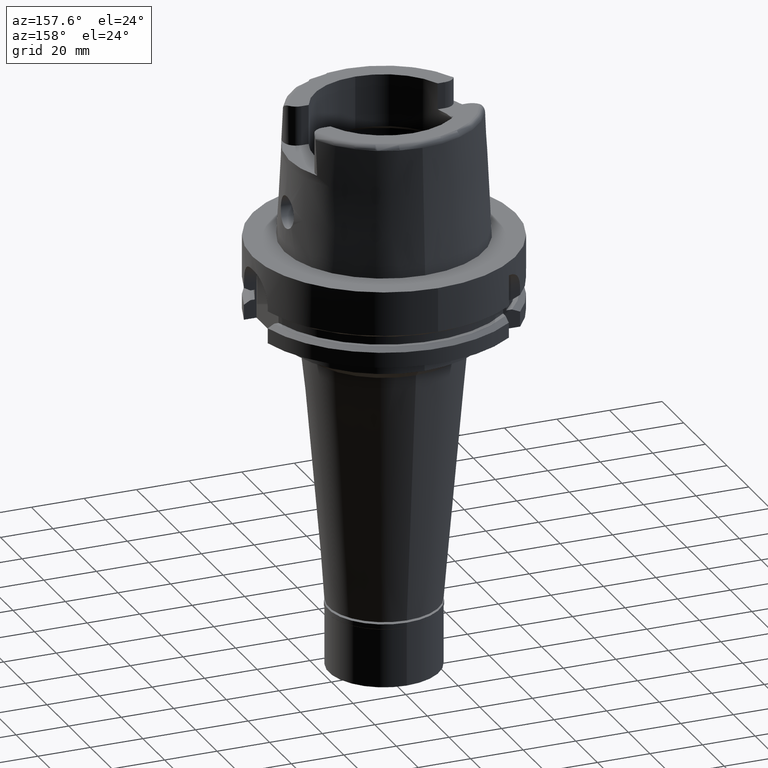
[diagram: clean part render]
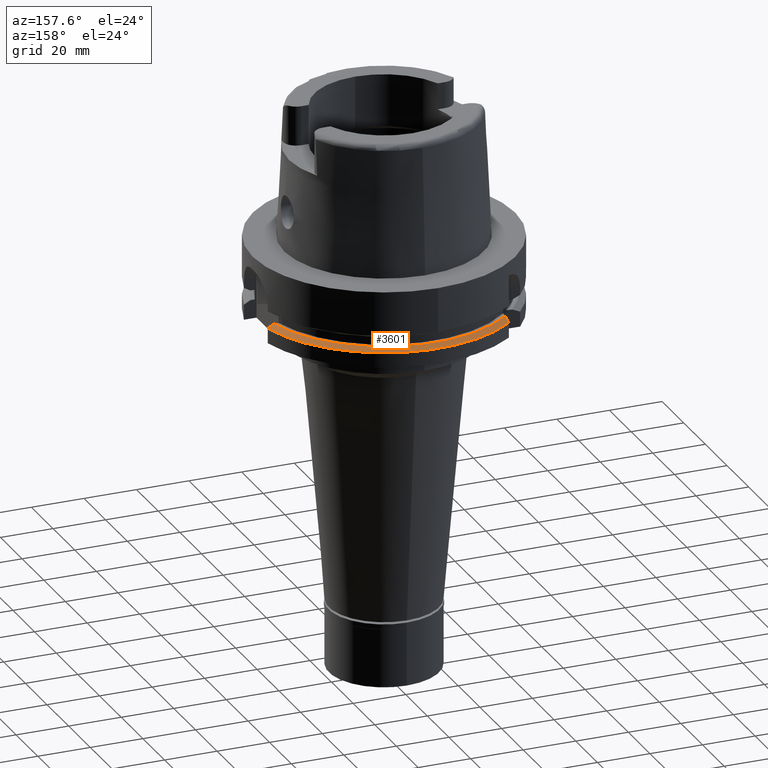
[diagram: same view with one face highlighted and labeled with its STEP entity id]
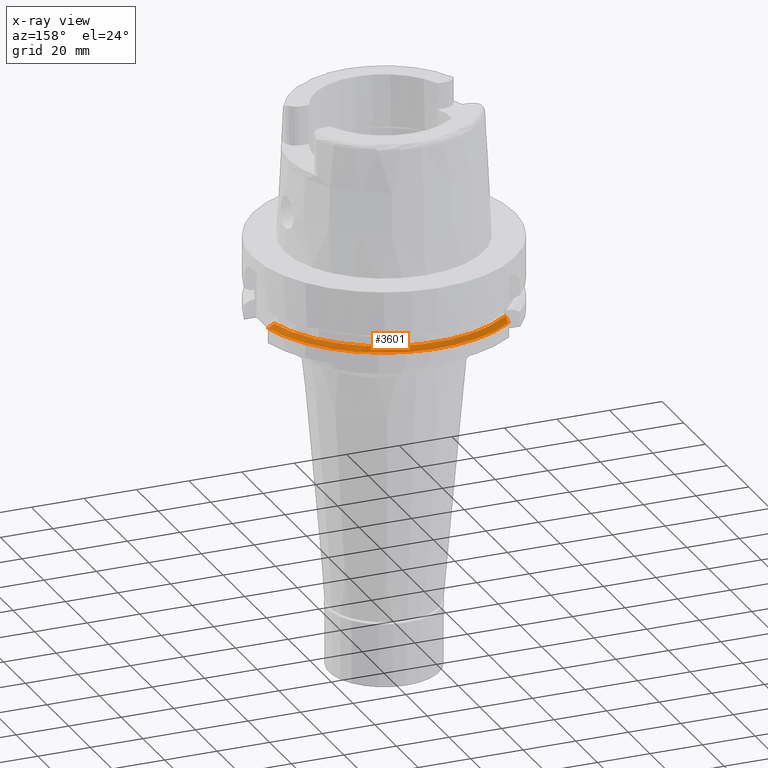
[diagram: x-ray of the same camera — body ghosted, the highlighted face saturated]
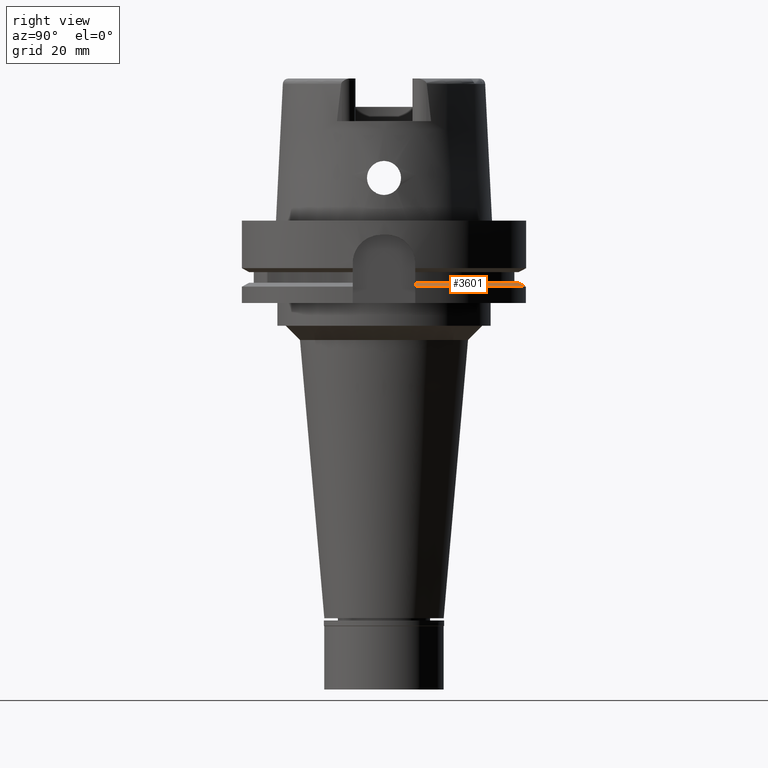
[diagram: same view with one face highlighted and labeled with its STEP entity id]
A machine part, auxiliary view. The second image highlights one B-rep face of the part: STEP entity #3601.
The next image is the same camera in x-ray: the body ghosted, the highlighted face saturated — about 0% of this face is hidden behind the body in this view.
A second angle (right view) of the same face is appended — the face is thin or edge-on in the first view.
In plain terms, the highlighted conical surface has half-angle 60 deg.
Its self-contained STEP definition (entity closure, byte-faithful):
#150 = CARTESIAN_POINT ( 'NONE',  ( -31.50000355985999789, 38.82975374283000036, -23.24760820811999906 ) ) ;
#303 = CARTESIAN_POINT ( 'NONE',  ( 47.14851446809999658, 11.00000000000000000, -22.33225649733000040 ) ) ;
#304 = DIRECTION ( 'NONE',  ( 0.0000000000000000000, 0.0000000000000000000, -1.000000000000000000 ) ) ;
#416 = CARTESIAN_POINT ( 'NONE',  ( 48.50399904748000068, 11.00000000000000000, -23.09496975037999889 ) ) ;
#758 = CARTESIAN_POINT ( 'NONE',  ( 47.96191616323000062, 11.00000000000000000, -22.78979543230000004 ) ) ;
#845 = ORIENTED_EDGE ( 'NONE', *, *, #4723, .T. ) ;
#891 = CARTESIAN_POINT ( 'NONE',  ( 46.33477721644000269, 11.00000000000000000, -21.87500000000000000 ) ) ;
#1059 = DIRECTION ( 'NONE',  ( 0.0000000000000000000, 0.0000000000000000000, -1.000000000000000000 ) ) ;
#1064 = CARTESIAN_POINT ( 'NONE',  ( -31.50000355985999789, 38.82975374283000036, -23.24760820811999906 ) ) ;
#1219 = DIRECTION ( 'NONE',  ( 0.0000000000000000000, 1.000000000000000000, 0.0000000000000000000 ) ) ;
#1358 = B_SPLINE_CURVE_WITH_KNOTS ( 'NONE', 3,
 ( #4617, #4929, #5415, #1064 ),
 .UNSPECIFIED., .F., .F.,
 ( 4, 4 ),
 ( 0.0000000000000000000, 1.000000000000000000 ),
 .UNSPECIFIED. ) ;
#1466 = EDGE_CURVE ( 'NONE', #4477, #1912, #1358, .T. ) ;
#1532 = B_SPLINE_CURVE_WITH_KNOTS ( 'NONE', 3,
 ( #5050, #416, #758, #303, #2026, #2138 ),
 .UNSPECIFIED., .F., .F.,
 ( 4, 1, 1, 4 ),
 ( 0.0000000000000000000, 0.3333333333333000081, 0.6666666666667000474, 1.000000000000000000 ),
 .UNSPECIFIED. ) ;
#1603 = CARTESIAN_POINT ( 'NONE',  ( 0.0000000000000000000, 0.0000000000000000000, -22.56129763209999695 ) ) ;
#1608 = EDGE_LOOP ( 'NONE', ( #2929, #845, #5070, #2727 ) ) ;
#1912 = VERTEX_POINT ( 'NONE', #150 ) ;
#2026 = CARTESIAN_POINT ( 'NONE',  ( 46.60605711264999940, 11.00000000000000000, -22.02738808210999721 ) ) ;
#2138 = CARTESIAN_POINT ( 'NONE',  ( 46.33477721644000269, 11.00000000000000000, -21.87500000000000000 ) ) ;
#2341 = AXIS2_PLACEMENT_3D ( 'NONE', #1603, #304, #2585 ) ;
#2453 = CARTESIAN_POINT ( 'NONE',  ( 0.0000000000000000000, 0.0000000000000000000, -21.87500000000000000 ) ) ;
#2523 = AXIS2_PLACEMENT_3D ( 'NONE', #2453, #3365, #1219 ) ;
#2585 = DIRECTION ( 'NONE',  ( 0.0000000000000000000, -1.000000000000000000, 0.0000000000000000000 ) ) ;
#2727 = ORIENTED_EDGE ( 'NONE', *, *, #4004, .F. ) ;
#2929 = ORIENTED_EDGE ( 'NONE', *, *, #1466, .F. ) ;
#3163 = CARTESIAN_POINT ( 'NONE',  ( 48.77499359303000404, 11.00000000000000000, -23.24759526419000011 ) ) ;
#3365 = DIRECTION ( 'NONE',  ( 0.0000000000000000000, 0.0000000000000000000, -1.000000000000000000 ) ) ;
#3499 = VERTEX_POINT ( 'NONE', #3163 ) ;
#3513 = CIRCLE ( 'NONE', #2523, 47.62259526418999656 ) ;
#3592 = AXIS2_PLACEMENT_3D ( 'NONE', #3629, #1059, #4899 ) ;
#3601 = ADVANCED_FACE ( 'NONE', ( #3723 ), #5034, .T. ) ;
#3629 = CARTESIAN_POINT ( 'NONE',  ( 0.0000000000000000000, 0.0000000000000000000, -23.24759526419000011 ) ) ;
#3723 = FACE_OUTER_BOUND ( 'NONE', #1608, .T. ) ;
#3866 = CIRCLE ( 'NONE', #3592, 50.00000000000000711 ) ;
#4004 = EDGE_CURVE ( 'NONE', #1912, #3499, #3866, .T. ) ;
#4358 = EDGE_CURVE ( 'NONE', #3499, #5531, #1532, .T. ) ;
#4477 = VERTEX_POINT ( 'NONE', #5099 ) ;
#4617 = CARTESIAN_POINT ( 'NONE',  ( -31.50000097288999967, 35.71639618401999883, -21.87500000000000000 ) ) ;
#4723 = EDGE_CURVE ( 'NONE', #4477, #5531, #3513, .T. ) ;
#4899 = DIRECTION ( 'NONE',  ( -0.6299999999999789102, 0.7765951326141738997, 0.0000000000000000000 ) ) ;
#4929 = CARTESIAN_POINT ( 'NONE',  ( -31.50000000000000000, 36.72844978580286579, -22.31322538854309911 ) ) ;
#5034 = CONICAL_SURFACE ( 'NONE', #2341, 48.81129763208999606, 1.047197551196400456 ) ;
#5050 = CARTESIAN_POINT ( 'NONE',  ( 48.77499359303000404, 11.00000000000000000, -23.24759526419000011 ) ) ;
#5070 = ORIENTED_EDGE ( 'NONE', *, *, #4358, .F. ) ;
#5099 = CARTESIAN_POINT ( 'NONE',  ( -31.50000097288999967, 35.71639618401999883, -21.87500000000000000 ) ) ;
#5415 = CARTESIAN_POINT ( 'NONE',  ( -31.50000000000000000, 37.76623563873953771, -22.77076145791643569 ) ) ;
#5531 = VERTEX_POINT ( 'NONE', #891 ) ;